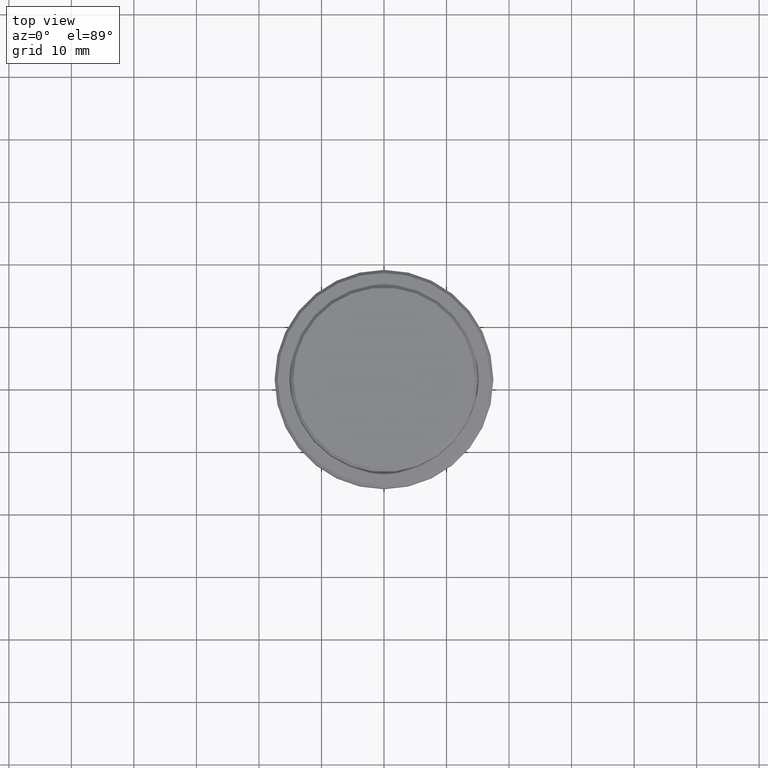
[diagram: clean part render]
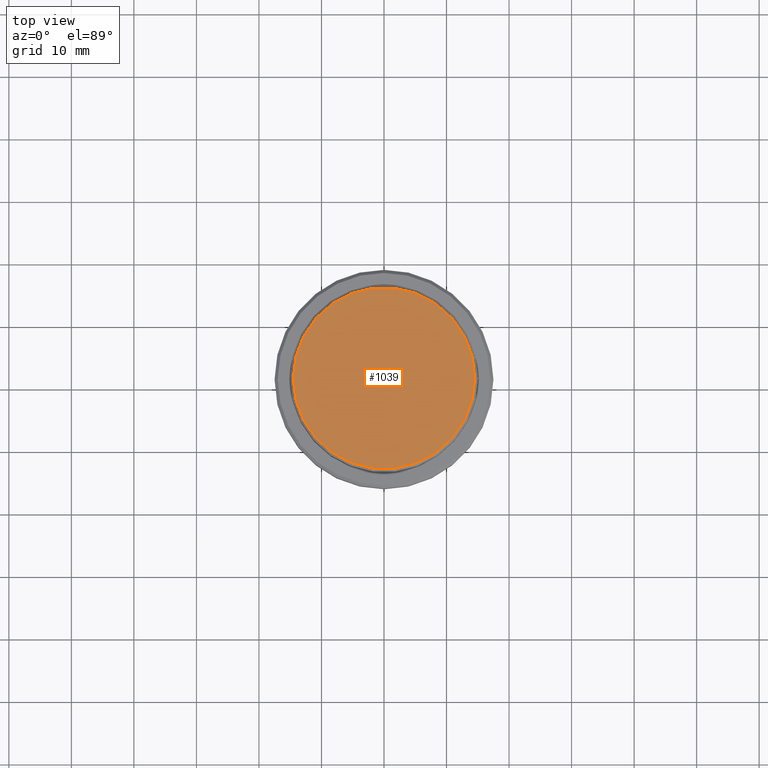
[diagram: same view with one face highlighted and labeled with its STEP entity id]
A machine part, top view. The second image highlights one B-rep face of the part: STEP entity #1039.
In plain terms, the highlighted planar face has unit normal (0, -0, 1).
Its self-contained STEP definition (entity closure, byte-faithful):
#14 = DIRECTION ( 'NONE',  ( 1.000000000000000000, 0.000000000000000000, 0.000000000000000000 ) ) ;
#87 = CARTESIAN_POINT ( 'NONE',  ( 0.000000000000000000, 0.000000000000000000, 0.000000000000000000 ) ) ;
#91 = ORIENTED_EDGE ( 'NONE', *, *, #1326, .T. ) ;
#107 = FACE_OUTER_BOUND ( 'NONE', #746, .T. ) ;
#117 = PLANE ( 'NONE',  #119 ) ;
#119 = AXIS2_PLACEMENT_3D ( 'NONE', #1311, #1122, #773 ) ;
#288 = DIRECTION ( 'NONE',  ( 1.000000000000000000, 0.000000000000000000, 0.000000000000000000 ) ) ;
#297 = DIRECTION ( 'NONE',  ( -0.000000000000000000, -0.000000000000000000, 1.000000000000000000 ) ) ;
#445 = VERTEX_POINT ( 'NONE', #1393 ) ;
#661 = VERTEX_POINT ( 'NONE', #1348 ) ;
#714 = ORIENTED_EDGE ( 'NONE', *, *, #1003, .T. ) ;
#746 = EDGE_LOOP ( 'NONE', ( #714, #91 ) ) ;
#773 = DIRECTION ( 'NONE',  ( 1.000000000000000000, 0.000000000000000000, 0.000000000000000000 ) ) ;
#781 = CARTESIAN_POINT ( 'NONE',  ( 0.000000000000000000, 0.000000000000000000, 0.000000000000000000 ) ) ;
#811 = AXIS2_PLACEMENT_3D ( 'NONE', #781, #1004, #14 ) ;
#979 = CIRCLE ( 'NONE', #1400, 14.49999999999998401 ) ;
#1003 = EDGE_CURVE ( 'NONE', #445, #661, #1206, .T. ) ;
#1004 = DIRECTION ( 'NONE',  ( -0.000000000000000000, -0.000000000000000000, 1.000000000000000000 ) ) ;
#1039 = ADVANCED_FACE ( 'NONE', ( #107 ), #117, .T. ) ;
#1122 = DIRECTION ( 'NONE',  ( 0.000000000000000000, -0.000000000000000000, 1.000000000000000000 ) ) ;
#1206 = CIRCLE ( 'NONE', #811, 14.49999999999998401 ) ;
#1311 = CARTESIAN_POINT ( 'NONE',  ( 0.000000000000000000, 0.000000000000000000, 0.000000000000000000 ) ) ;
#1326 = EDGE_CURVE ( 'NONE', #661, #445, #979, .T. ) ;
#1348 = CARTESIAN_POINT ( 'NONE',  ( 14.49999999999998401, 1.806354028742345013E-15, 0.000000000000000000 ) ) ;
#1393 = CARTESIAN_POINT ( 'NONE',  ( -14.49999999999998401, 0.000000000000000000, 0.000000000000000000 ) ) ;
#1400 = AXIS2_PLACEMENT_3D ( 'NONE', #87, #297, #288 ) ;